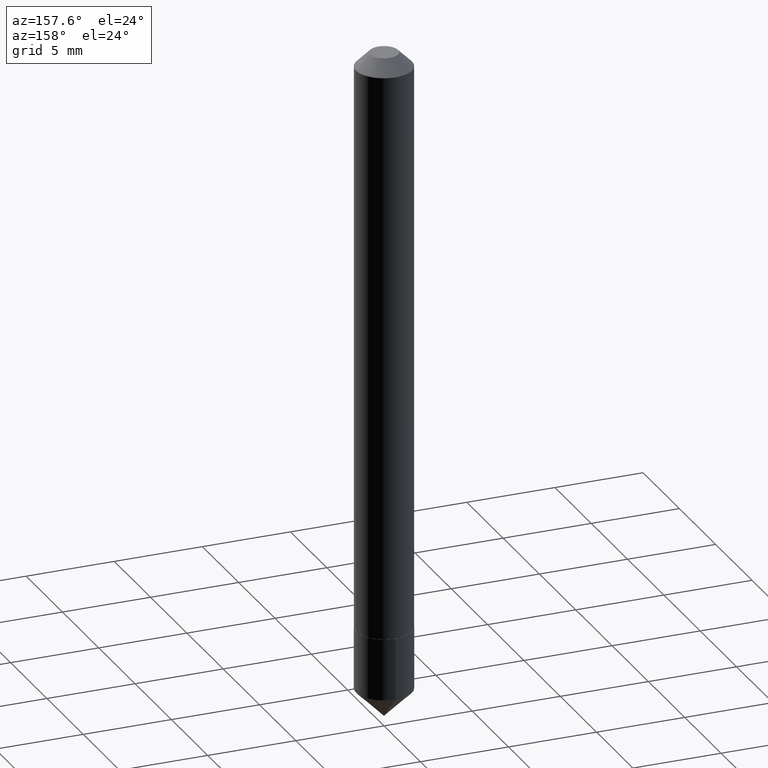
[diagram: clean part render]
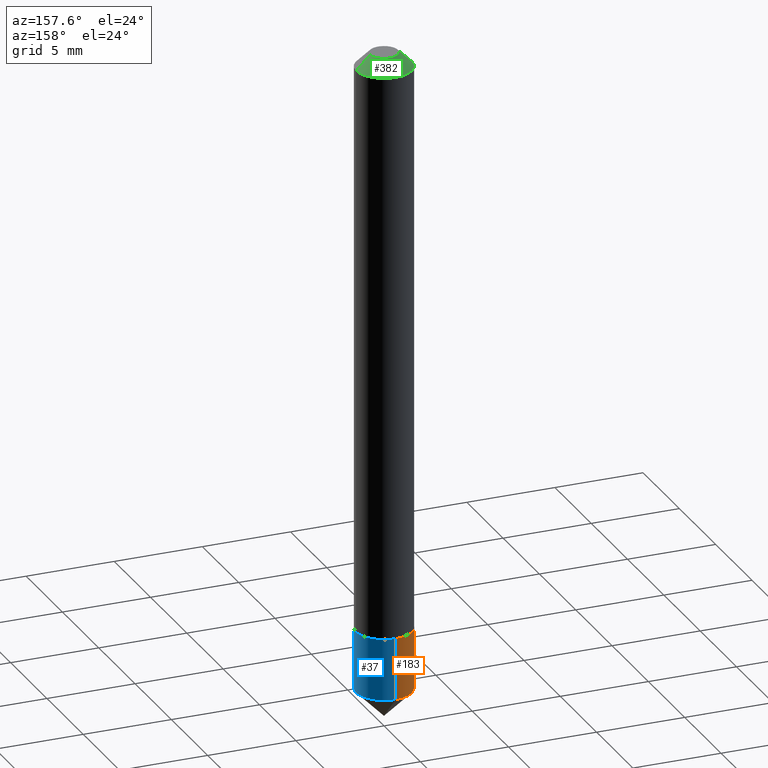
[diagram: same view with three faces highlighted in distinct colors, each labeled with its STEP entity id]
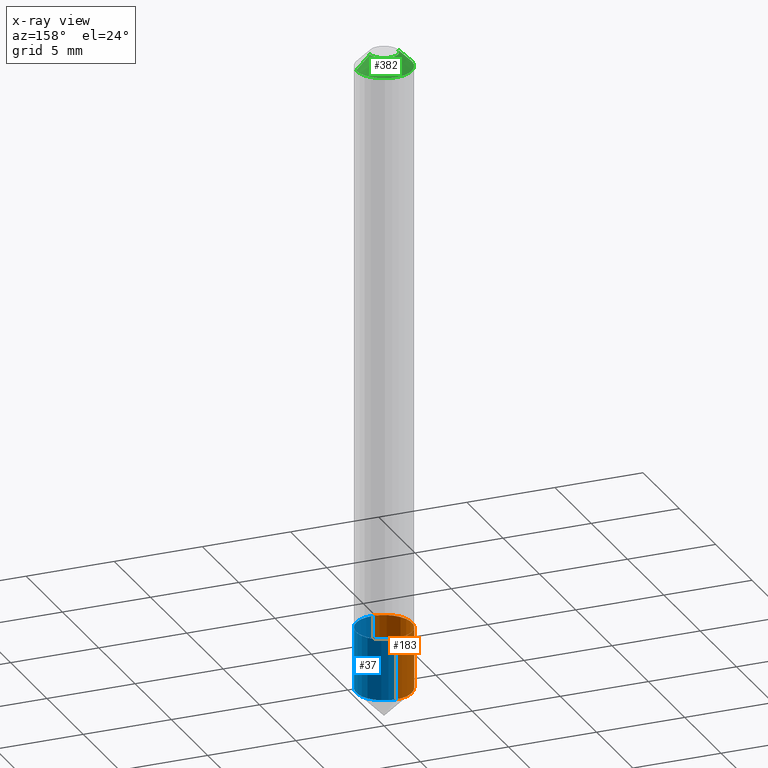
[diagram: x-ray of the same camera — body ghosted, the three highlighted faces saturated]
A machine part, auxiliary view with three faces highlighted in distinct colors.
The next image is the same camera in x-ray (body ghosted, the three faces saturated) — at least one of them is partly hidden behind the body in this view.
Their STEP definitions:

[orange] entity #183 — the highlighted cylindrical surface (edge-blend (fillet) strip) has radius 1.5875 mm, axis along (-0, 0, 1).
#2 = VERTEX_POINT ( 'NONE', #248 ) ;
#33 = ORIENTED_EDGE ( 'NONE', *, *, #359, .T. ) ;
#43 = ORIENTED_EDGE ( 'NONE', *, *, #257, .F. ) ;
#62 = EDGE_CURVE ( 'NONE', #2, #102, #364, .T. ) ;
#70 = DIRECTION ( 'NONE',  ( -6.982962677686265922E-15, -1.000000000000000000, 4.370956789862820361E-15 ) ) ;
#76 = DIRECTION ( 'NONE',  ( -6.982962677686265922E-15, -1.000000000000000000, 4.370956789862820361E-15 ) ) ;
#85 = DIRECTION ( 'NONE',  ( -6.982962677686265922E-15, -1.000000000000000000, 4.370956789862819572E-15 ) ) ;
#102 = VERTEX_POINT ( 'NONE', #198 ) ;
#103 = VERTEX_POINT ( 'NONE', #327 ) ;
#112 = CYLINDRICAL_SURFACE ( 'NONE', #237, 0.06250000000000001388 ) ;
#114 = LINE ( 'NONE', #214, #131 ) ;
#131 = VECTOR ( 'NONE', #234, 39.37007874015748143 ) ;
#141 = DIRECTION ( 'NONE',  ( -2.413119064398837894E-29, 3.537808010314082757E-15, 1.000000000000000000 ) ) ;
#153 = CIRCLE ( 'NONE', #372, 0.06250000000000001388 ) ;
#166 = CARTESIAN_POINT ( 'NONE',  ( 3.179109448040676791E-29, -4.538925740496088350E-15, -1.299999999999999822 ) ) ;
#178 = VECTOR ( 'NONE', #329, 39.37007874015748143 ) ;
#183 = ADVANCED_FACE ( 'NONE', ( #266 ), #112, .T. ) ;
#194 = AXIS2_PLACEMENT_3D ( 'NONE', #385, #383, #85 ) ;
#198 = CARTESIAN_POINT ( 'NONE',  ( -4.364351673553566637E-16, -0.06250000000000505151, -1.437500000000000000 ) ) ;
#214 = CARTESIAN_POINT ( 'NONE',  ( -4.364351673553599671E-16, -0.06250000000000455191, -1.299999999999999600 ) ) ;
#219 = EDGE_CURVE ( 'NONE', #2, #370, #293, .T. ) ;
#229 = CARTESIAN_POINT ( 'NONE',  ( 4.440892098500944664E-16, 0.06249999999999547584, -1.300000000000000044 ) ) ;
#234 = DIRECTION ( 'NONE',  ( -2.413119064398838175E-29, 3.537808010314082757E-15, 1.000000000000000000 ) ) ;
#237 = AXIS2_PLACEMENT_3D ( 'NONE', #166, #348, #76 ) ;
#248 = CARTESIAN_POINT ( 'NONE',  ( 4.440892098500978191E-16, 0.06249999999999499706, -1.437500000000000444 ) ) ;
#257 = EDGE_CURVE ( 'NONE', #370, #103, #153, .T. ) ;
#266 = FACE_OUTER_BOUND ( 'NONE', #302, .T. ) ;
#293 = LINE ( 'NONE', #229, #178 ) ;
#302 = EDGE_LOOP ( 'NONE', ( #343, #308, #33, #43 ) ) ;
#308 = ORIENTED_EDGE ( 'NONE', *, *, #62, .T. ) ;
#327 = CARTESIAN_POINT ( 'NONE',  ( -4.364351673553599671E-16, -0.06250000000000455191, -1.299999999999999600 ) ) ;
#329 = DIRECTION ( 'NONE',  ( -2.413119064398838175E-29, 3.537808010314082757E-15, 1.000000000000000000 ) ) ;
#339 = CARTESIAN_POINT ( 'NONE',  ( 4.440892098500978191E-16, 0.06249999999999547584, -1.300000000000000044 ) ) ;
#343 = ORIENTED_EDGE ( 'NONE', *, *, #219, .F. ) ;
#348 = DIRECTION ( 'NONE',  ( -2.413119064398837894E-29, 3.537808010314082757E-15, 1.000000000000000000 ) ) ;
#354 = CARTESIAN_POINT ( 'NONE',  ( 3.179109448040676791E-29, -4.538925740496088350E-15, -1.299999999999999822 ) ) ;
#359 = EDGE_CURVE ( 'NONE', #102, #103, #114, .T. ) ;
#364 = CIRCLE ( 'NONE', #194, 0.06250000000000002776 ) ;
#370 = VERTEX_POINT ( 'NONE', #339 ) ;
#372 = AXIS2_PLACEMENT_3D ( 'NONE', #354, #141, #70 ) ;
#383 = DIRECTION ( 'NONE',  ( -2.413119064398837894E-29, 3.537808010314082757E-15, 1.000000000000000000 ) ) ;
#385 = CARTESIAN_POINT ( 'NONE',  ( 3.510913319395518105E-29, -5.025374341914276554E-15, -1.437500000000000222 ) ) ;

[blue] entity #37 — the highlighted cylindrical surface (edge-blend (fillet) strip) has radius 1.5875 mm, axis along (-0, 0, 1).
#2 = VERTEX_POINT ( 'NONE', #248 ) ;
#8 = EDGE_CURVE ( 'NONE', #103, #370, #13, .T. ) ;
#13 = CIRCLE ( 'NONE', #65, 0.06250000000000001388 ) ;
#18 = CIRCLE ( 'NONE', #146, 0.06250000000000002776 ) ;
#29 = ORIENTED_EDGE ( 'NONE', *, *, #219, .T. ) ;
#37 = ADVANCED_FACE ( 'NONE', ( #127 ), #369, .T. ) ;
#65 = AXIS2_PLACEMENT_3D ( 'NONE', #189, #160, #157 ) ;
#99 = DIRECTION ( 'NONE',  ( -6.982962677686265922E-15, -1.000000000000000000, 4.370956789862820361E-15 ) ) ;
#102 = VERTEX_POINT ( 'NONE', #198 ) ;
#103 = VERTEX_POINT ( 'NONE', #327 ) ;
#114 = LINE ( 'NONE', #214, #131 ) ;
#127 = FACE_OUTER_BOUND ( 'NONE', #241, .T. ) ;
#131 = VECTOR ( 'NONE', #234, 39.37007874015748143 ) ;
#145 = AXIS2_PLACEMENT_3D ( 'NONE', #284, #314, #99 ) ;
#146 = AXIS2_PLACEMENT_3D ( 'NONE', #242, #240, #245 ) ;
#157 = DIRECTION ( 'NONE',  ( -6.982962677686265922E-15, -1.000000000000000000, 4.370956789862820361E-15 ) ) ;
#160 = DIRECTION ( 'NONE',  ( -2.413119064398837894E-29, 3.537808010314082757E-15, 1.000000000000000000 ) ) ;
#163 = ORIENTED_EDGE ( 'NONE', *, *, #8, .F. ) ;
#177 = ORIENTED_EDGE ( 'NONE', *, *, #332, .T. ) ;
#178 = VECTOR ( 'NONE', #329, 39.37007874015748143 ) ;
#180 = ORIENTED_EDGE ( 'NONE', *, *, #359, .F. ) ;
#189 = CARTESIAN_POINT ( 'NONE',  ( 3.179109448040676791E-29, -4.538925740496088350E-15, -1.299999999999999822 ) ) ;
#198 = CARTESIAN_POINT ( 'NONE',  ( -4.364351673553566637E-16, -0.06250000000000505151, -1.437500000000000000 ) ) ;
#214 = CARTESIAN_POINT ( 'NONE',  ( -4.364351673553599671E-16, -0.06250000000000455191, -1.299999999999999600 ) ) ;
#219 = EDGE_CURVE ( 'NONE', #2, #370, #293, .T. ) ;
#229 = CARTESIAN_POINT ( 'NONE',  ( 4.440892098500944664E-16, 0.06249999999999547584, -1.300000000000000044 ) ) ;
#234 = DIRECTION ( 'NONE',  ( -2.413119064398838175E-29, 3.537808010314082757E-15, 1.000000000000000000 ) ) ;
#240 = DIRECTION ( 'NONE',  ( -2.413119064398837894E-29, 3.537808010314082757E-15, 1.000000000000000000 ) ) ;
#241 = EDGE_LOOP ( 'NONE', ( #177, #29, #163, #180 ) ) ;
#242 = CARTESIAN_POINT ( 'NONE',  ( 3.510913319395518105E-29, -5.025374341914276554E-15, -1.437500000000000222 ) ) ;
#245 = DIRECTION ( 'NONE',  ( -6.982962677686265922E-15, -1.000000000000000000, 4.370956789862819572E-15 ) ) ;
#248 = CARTESIAN_POINT ( 'NONE',  ( 4.440892098500978191E-16, 0.06249999999999499706, -1.437500000000000444 ) ) ;
#284 = CARTESIAN_POINT ( 'NONE',  ( 3.179109448040676791E-29, -4.538925740496088350E-15, -1.299999999999999822 ) ) ;
#293 = LINE ( 'NONE', #229, #178 ) ;
#314 = DIRECTION ( 'NONE',  ( -2.413119064398837894E-29, 3.537808010314082757E-15, 1.000000000000000000 ) ) ;
#327 = CARTESIAN_POINT ( 'NONE',  ( -4.364351673553599671E-16, -0.06250000000000455191, -1.299999999999999600 ) ) ;
#329 = DIRECTION ( 'NONE',  ( -2.413119064398838175E-29, 3.537808010314082757E-15, 1.000000000000000000 ) ) ;
#332 = EDGE_CURVE ( 'NONE', #102, #2, #18, .T. ) ;
#339 = CARTESIAN_POINT ( 'NONE',  ( 4.440892098500978191E-16, 0.06249999999999547584, -1.300000000000000044 ) ) ;
#359 = EDGE_CURVE ( 'NONE', #102, #103, #114, .T. ) ;
#369 = CYLINDRICAL_SURFACE ( 'NONE', #145, 0.06250000000000001388 ) ;
#370 = VERTEX_POINT ( 'NONE', #339 ) ;

[green] entity #382 — the highlighted conical surface has half-angle 45 deg.
#3 = EDGE_CURVE ( 'NONE', #390, #132, #250, .T. ) ;
#21 = CARTESIAN_POINT ( 'NONE',  ( 0.06250000000000001388, -5.378899166995698233E-16, -0.03125000000000020817 ) ) ;
#34 = DIRECTION ( 'NONE',  ( -0.7071067811865454633, 2.468850131082235367E-15, -0.7071067811865495711 ) ) ;
#68 = CARTESIAN_POINT ( 'NONE',  ( 7.642090019328602662E-31, -1.091087918388490267E-16, -0.03125000000000020817 ) ) ;
#69 = CARTESIAN_POINT ( 'NONE',  ( 7.642090019328602662E-31, -1.091087918388490267E-16, -0.03125000000000020817 ) ) ;
#72 = EDGE_LOOP ( 'NONE', ( #336, #317, #246, #283 ) ) ;
#77 = AXIS2_PLACEMENT_3D ( 'NONE', #69, #217, #243 ) ;
#86 = DIRECTION ( 'NONE',  ( 1.000000000000000000, -6.982962677686267499E-15, 4.877000552086102004E-29 ) ) ;
#88 = CARTESIAN_POINT ( 'NONE',  ( 0.03125000000000000694, -3.761402395649651909E-16, -3.091620844447285598E-17 ) ) ;
#93 = VECTOR ( 'NONE', #34, 39.37007874015748143 ) ;
#108 = AXIS2_PLACEMENT_3D ( 'NONE', #227, #290, #86 ) ;
#113 = CONICAL_SURFACE ( 'NONE', #181, 0.06250000000000001388, 0.7853981633974453924 ) ;
#132 = VERTEX_POINT ( 'NONE', #320 ) ;
#138 = LINE ( 'NONE', #21, #269 ) ;
#154 = DIRECTION ( 'NONE',  ( 2.445468806185136597E-29, -3.491481338843145583E-15, -1.000000000000000000 ) ) ;
#156 = FACE_OUTER_BOUND ( 'NONE', #72, .T. ) ;
#175 = CARTESIAN_POINT ( 'NONE',  ( -0.06250000000000001388, 3.273263755165427167E-16, -0.03125000000000020817 ) ) ;
#181 = AXIS2_PLACEMENT_3D ( 'NONE', #68, #154, #182 ) ;
#182 = DIRECTION ( 'NONE',  ( -1.000000000000000000, 6.982962677686265922E-15, 0.000000000000000000 ) ) ;
#204 = DIRECTION ( 'NONE',  ( 0.7071067811865454633, -7.319954787623248157E-15, -0.7071067811865495711 ) ) ;
#216 = LINE ( 'NONE', #175, #93 ) ;
#217 = DIRECTION ( 'NONE',  ( -2.445468806185136597E-29, 3.491481338843145583E-15, 1.000000000000000000 ) ) ;
#222 = VERTEX_POINT ( 'NONE', #288 ) ;
#223 = EDGE_CURVE ( 'NONE', #312, #222, #386, .T. ) ;
#227 = CARTESIAN_POINT ( 'NONE',  ( 7.560462335648095015E-46, -1.079433648516691094E-31, -3.091620844447493906E-17 ) ) ;
#243 = DIRECTION ( 'NONE',  ( 1.000000000000000000, -6.982962677686265922E-15, 0.000000000000000000 ) ) ;
#246 = ORIENTED_EDGE ( 'NONE', *, *, #3, .T. ) ;
#247 = EDGE_CURVE ( 'NONE', #312, #390, #138, .T. ) ;
#250 = CIRCLE ( 'NONE', #77, 0.06250000000000001388 ) ;
#269 = VECTOR ( 'NONE', #204, 39.37007874015748143 ) ;
#278 = CARTESIAN_POINT ( 'NONE',  ( 0.06250000000000001388, -5.455439591942407701E-16, -0.03125000000000020817 ) ) ;
#283 = ORIENTED_EDGE ( 'NONE', *, *, #344, .F. ) ;
#288 = CARTESIAN_POINT ( 'NONE',  ( -0.03125000000000000694, 2.727719795971192510E-16, -3.091620844447665237E-17 ) ) ;
#290 = DIRECTION ( 'NONE',  ( -2.445468806185136597E-29, 3.491481338843145583E-15, 1.000000000000000000 ) ) ;
#312 = VERTEX_POINT ( 'NONE', #88 ) ;
#317 = ORIENTED_EDGE ( 'NONE', *, *, #247, .T. ) ;
#320 = CARTESIAN_POINT ( 'NONE',  ( -0.06250000000000001388, -1.879055185982692991E-15, -0.03125000000000020817 ) ) ;
#336 = ORIENTED_EDGE ( 'NONE', *, *, #223, .F. ) ;
#344 = EDGE_CURVE ( 'NONE', #222, #132, #216, .T. ) ;
#382 = ADVANCED_FACE ( 'NONE', ( #156 ), #113, .T. ) ;
#386 = CIRCLE ( 'NONE', #108, 0.03125000000000000694 ) ;
#390 = VERTEX_POINT ( 'NONE', #278 ) ;